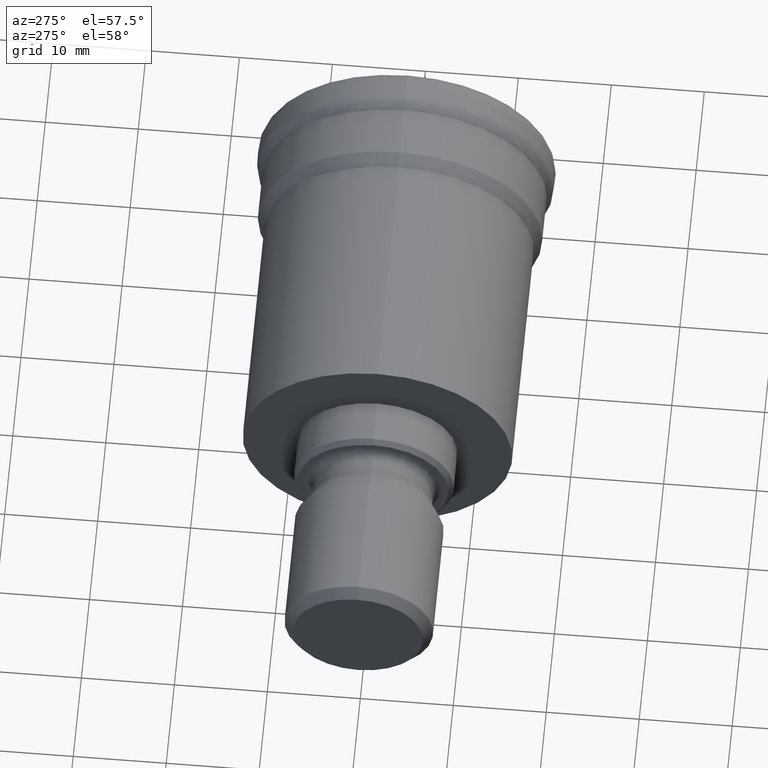
[diagram: clean part render]
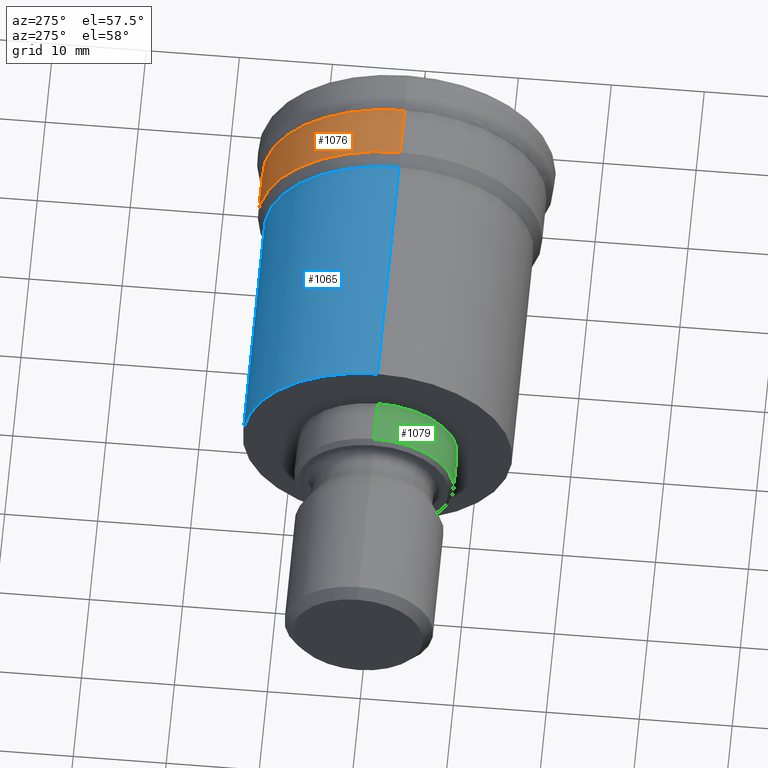
[diagram: same view with three faces highlighted in distinct colors, each labeled with its STEP entity id]
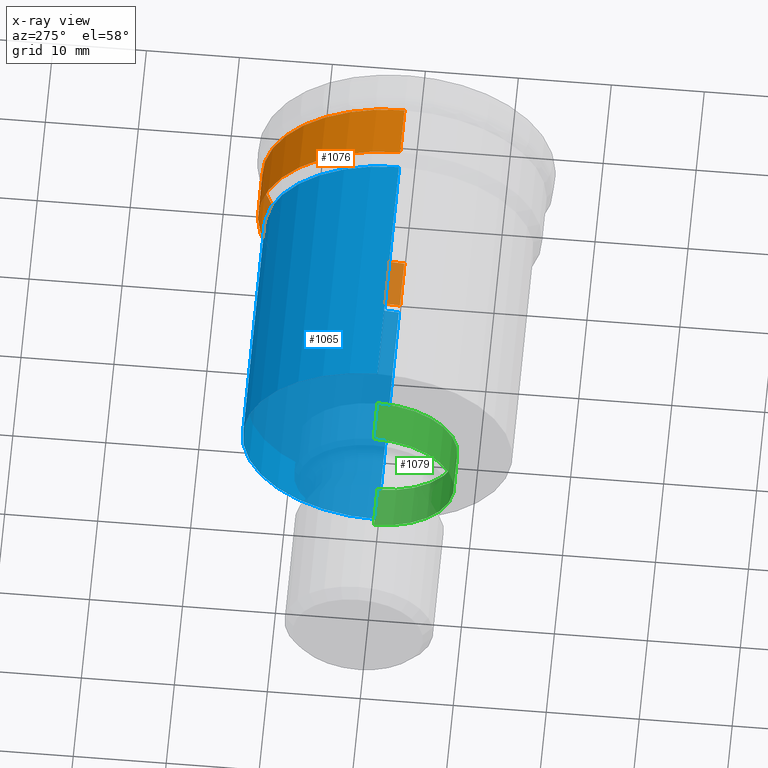
[diagram: x-ray of the same camera — body ghosted, the three highlighted faces saturated]
A machine part, auxiliary view with three faces highlighted in distinct colors.
The next image is the same camera in x-ray (body ghosted, the three faces saturated) — at least one of them is partly hidden behind the body in this view.
Their STEP definitions:

[orange] entity #1076 — the highlighted cylindrical surface (partial cylindrical patch) has radius 15.3 mm, axis along (1, -0, -0).
#69 = DIRECTION ( 'NONE',  ( 1.000000000000000000, -0.0000000000000000000, -0.0000000000000000000 ) ) ;
#75 = CARTESIAN_POINT ( 'NONE',  ( 0.0000000000000000000, 0.0000000000000000000, 0.0000000000000000000 ) ) ;
#78 = DIRECTION ( 'NONE',  ( 0.0000000000000000000, 0.0000000000000000000, -1.000000000000000000 ) ) ;
#159 = CIRCLE ( 'NONE', #523, 15.29999999999999700 ) ;
#217 = ORIENTED_EDGE ( 'NONE', *, *, #506, .T. ) ;
#224 = ORIENTED_EDGE ( 'NONE', *, *, #406, .F. ) ;
#231 = ORIENTED_EDGE ( 'NONE', *, *, #545, .F. ) ;
#258 = ORIENTED_EDGE ( 'NONE', *, *, #496, .T. ) ;
#323 = CIRCLE ( 'NONE', #454, 15.29999999999999700 ) ;
#338 = LINE ( 'NONE', #939, #347 ) ;
#347 = VECTOR ( 'NONE', #938, 1000.000000000000000 ) ;
#372 = LINE ( 'NONE', #887, #379 ) ;
#379 = VECTOR ( 'NONE', #690, 1000.000000000000000 ) ;
#406 = EDGE_CURVE ( 'NONE', #860, #864, #372, .T. ) ;
#454 = AXIS2_PLACEMENT_3D ( 'NONE', #973, #928, #995 ) ;
#496 = EDGE_CURVE ( 'NONE', #860, #846, #323, .T. ) ;
#506 = EDGE_CURVE ( 'NONE', #846, #863, #338, .T. ) ;
#523 = AXIS2_PLACEMENT_3D ( 'NONE', #809, #910, #1002 ) ;
#545 = EDGE_CURVE ( 'NONE', #864, #863, #159, .T. ) ;
#549 = AXIS2_PLACEMENT_3D ( 'NONE', #75, #69, #78 ) ;
#601 = EDGE_LOOP ( 'NONE', ( #258, #217, #231, #224 ) ) ;
#690 = DIRECTION ( 'NONE',  ( 1.000000000000000000, -0.0000000000000000000, -0.0000000000000000000 ) ) ;
#748 = CARTESIAN_POINT ( 'NONE',  ( -11.10000000000000000, 0.0000000000000000000, -15.29999999999999700 ) ) ;
#792 = CARTESIAN_POINT ( 'NONE',  ( -5.747249536980591600, 0.0000000000000000000, -15.29999999999999700 ) ) ;
#809 = CARTESIAN_POINT ( 'NONE',  ( -5.747249536980591600, 0.0000000000000000000, 0.0000000000000000000 ) ) ;
#834 = CARTESIAN_POINT ( 'NONE',  ( -5.747249536980591600, 1.873709602695450100E-015, 15.29999999999999700 ) ) ;
#846 = VERTEX_POINT ( 'NONE', #899 ) ;
#860 = VERTEX_POINT ( 'NONE', #748 ) ;
#863 = VERTEX_POINT ( 'NONE', #834 ) ;
#864 = VERTEX_POINT ( 'NONE', #792 ) ;
#887 = CARTESIAN_POINT ( 'NONE',  ( 0.0000000000000000000, 0.0000000000000000000, -15.29999999999999700 ) ) ;
#899 = CARTESIAN_POINT ( 'NONE',  ( -11.10000000000000000, 1.873709602695450100E-015, 15.29999999999999700 ) ) ;
#910 = DIRECTION ( 'NONE',  ( 1.000000000000000000, -0.0000000000000000000, -0.0000000000000000000 ) ) ;
#928 = DIRECTION ( 'NONE',  ( 1.000000000000000000, -0.0000000000000000000, -0.0000000000000000000 ) ) ;
#938 = DIRECTION ( 'NONE',  ( 1.000000000000000000, -0.0000000000000000000, -0.0000000000000000000 ) ) ;
#939 = CARTESIAN_POINT ( 'NONE',  ( 0.0000000000000000000, 1.873709602695450100E-015, 15.29999999999999700 ) ) ;
#973 = CARTESIAN_POINT ( 'NONE',  ( -11.10000000000000000, 0.0000000000000000000, 0.0000000000000000000 ) ) ;
#995 = DIRECTION ( 'NONE',  ( 0.0000000000000000000, 0.0000000000000000000, -1.000000000000000000 ) ) ;
#1002 = DIRECTION ( 'NONE',  ( 0.0000000000000000000, 0.0000000000000000000, -1.000000000000000000 ) ) ;
#1024 = FACE_OUTER_BOUND ( 'NONE', #601, .T. ) ;
#1035 = CYLINDRICAL_SURFACE ( 'NONE', #549, 15.29999999999999700 ) ;
#1076 = ADVANCED_FACE ( 'NONE', ( #1024 ), #1035, .T. ) ;

[blue] entity #1065 — the highlighted cylindrical surface (partial cylindrical patch) has radius 14.5 mm, axis along (1, -0, -0).
#27 = DIRECTION ( 'NONE',  ( 0.0000000000000000000, 0.0000000000000000000, -1.000000000000000000 ) ) ;
#132 = CARTESIAN_POINT ( 'NONE',  ( 0.0000000000000000000, 0.0000000000000000000, 0.0000000000000000000 ) ) ;
#138 = DIRECTION ( 'NONE',  ( 1.000000000000000000, -0.0000000000000000000, -0.0000000000000000000 ) ) ;
#156 = LINE ( 'NONE', #911, #196 ) ;
#186 = CIRCLE ( 'NONE', #445, 14.49999999999999800 ) ;
#196 = VECTOR ( 'NONE', #893, 1000.000000000000000 ) ;
#214 = ORIENTED_EDGE ( 'NONE', *, *, #467, .T. ) ;
#240 = ORIENTED_EDGE ( 'NONE', *, *, #418, .T. ) ;
#292 = ORIENTED_EDGE ( 'NONE', *, *, #576, .F. ) ;
#306 = CIRCLE ( 'NONE', #432, 14.49999999999999500 ) ;
#358 = VECTOR ( 'NONE', #672, 1000.000000000000000 ) ;
#374 = LINE ( 'NONE', #990, #358 ) ;
#418 = EDGE_CURVE ( 'NONE', #870, #679, #374, .T. ) ;
#432 = AXIS2_PLACEMENT_3D ( 'NONE', #962, #724, #725 ) ;
#445 = AXIS2_PLACEMENT_3D ( 'NONE', #920, #981, #1014 ) ;
#467 = EDGE_CURVE ( 'NONE', #875, #870, #306, .T. ) ;
#576 = EDGE_CURVE ( 'NONE', #875, #868, #156, .T. ) ;
#585 = AXIS2_PLACEMENT_3D ( 'NONE', #132, #138, #27 ) ;
#587 = EDGE_CURVE ( 'NONE', #868, #679, #186, .T. ) ;
#604 = EDGE_LOOP ( 'NONE', ( #214, #240, #637, #292 ) ) ;
#637 = ORIENTED_EDGE ( 'NONE', *, *, #587, .F. ) ;
#672 = DIRECTION ( 'NONE',  ( 1.000000000000000000, -0.0000000000000000000, -0.0000000000000000000 ) ) ;
#679 = VERTEX_POINT ( 'NONE', #958 ) ;
#724 = DIRECTION ( 'NONE',  ( 1.000000000000000000, -0.0000000000000000000, -0.0000000000000000000 ) ) ;
#725 = DIRECTION ( 'NONE',  ( 0.0000000000000000000, 0.0000000000000000000, -1.000000000000000000 ) ) ;
#798 = CARTESIAN_POINT ( 'NONE',  ( -12.48564064605510300, 0.0000000000000000000, -14.49999999999999800 ) ) ;
#802 = CARTESIAN_POINT ( 'NONE',  ( -38.85999999999999900, 1.775737858763661600E-015, 14.49999999999999500 ) ) ;
#813 = CARTESIAN_POINT ( 'NONE',  ( -38.85999999999999900, 0.0000000000000000000, -14.49999999999999500 ) ) ;
#868 = VERTEX_POINT ( 'NONE', #798 ) ;
#870 = VERTEX_POINT ( 'NONE', #802 ) ;
#875 = VERTEX_POINT ( 'NONE', #813 ) ;
#893 = DIRECTION ( 'NONE',  ( 1.000000000000000000, -0.0000000000000000000, -0.0000000000000000000 ) ) ;
#911 = CARTESIAN_POINT ( 'NONE',  ( 0.0000000000000000000, 0.0000000000000000000, -14.49999999999999600 ) ) ;
#920 = CARTESIAN_POINT ( 'NONE',  ( -12.48564064605510300, 0.0000000000000000000, 0.0000000000000000000 ) ) ;
#958 = CARTESIAN_POINT ( 'NONE',  ( -12.48564064605510300, 1.775737858763662000E-015, 14.50000000000000000 ) ) ;
#962 = CARTESIAN_POINT ( 'NONE',  ( -38.85999999999999900, 0.0000000000000000000, 0.0000000000000000000 ) ) ;
#981 = DIRECTION ( 'NONE',  ( 1.000000000000000000, -0.0000000000000000000, -0.0000000000000000000 ) ) ;
#990 = CARTESIAN_POINT ( 'NONE',  ( 0.0000000000000000000, 1.775737858763661600E-015, 14.49999999999999600 ) ) ;
#1014 = DIRECTION ( 'NONE',  ( 0.0000000000000000000, 0.0000000000000000000, -1.000000000000000000 ) ) ;
#1065 = ADVANCED_FACE ( 'NONE', ( #1133 ), #1087, .T. ) ;
#1087 = CYLINDRICAL_SURFACE ( 'NONE', #585, 14.49999999999999600 ) ;
#1133 = FACE_OUTER_BOUND ( 'NONE', #604, .T. ) ;

[green] entity #1079 — the highlighted cylindrical surface (partial cylindrical patch) has radius 8.6 mm, axis along (1, -0, -0).
#5 = AXIS2_PLACEMENT_3D ( 'NONE', #116, #117, #118 ) ;
#116 = CARTESIAN_POINT ( 'NONE',  ( 0.0000000000000000000, 0.0000000000000000000, 0.0000000000000000000 ) ) ;
#117 = DIRECTION ( 'NONE',  ( 1.000000000000000000, -0.0000000000000000000, -0.0000000000000000000 ) ) ;
#118 = DIRECTION ( 'NONE',  ( 0.0000000000000000000, 0.0000000000000000000, -1.000000000000000000 ) ) ;
#164 = VECTOR ( 'NONE', #906, 1000.000000000000000 ) ;
#168 = LINE ( 'NONE', #925, #164 ) ;
#212 = ORIENTED_EDGE ( 'NONE', *, *, #509, .T. ) ;
#216 = ORIENTED_EDGE ( 'NONE', *, *, #402, .F. ) ;
#284 = ORIENTED_EDGE ( 'NONE', *, *, #554, .T. ) ;
#324 = LINE ( 'NONE', #772, #346 ) ;
#345 = CIRCLE ( 'NONE', #577, 8.599999999999996100 ) ;
#346 = VECTOR ( 'NONE', #782, 1000.000000000000000 ) ;
#375 = CIRCLE ( 'NONE', #451, 8.599999999999996100 ) ;
#402 = EDGE_CURVE ( 'NONE', #856, #884, #375, .T. ) ;
#451 = AXIS2_PLACEMENT_3D ( 'NONE', #682, #700, #699 ) ;
#509 = EDGE_CURVE ( 'NONE', #882, #862, #345, .T. ) ;
#515 = EDGE_CURVE ( 'NONE', #882, #856, #324, .T. ) ;
#554 = EDGE_CURVE ( 'NONE', #862, #884, #168, .T. ) ;
#577 = AXIS2_PLACEMENT_3D ( 'NONE', #1012, #947, #776 ) ;
#598 = EDGE_LOOP ( 'NONE', ( #653, #212, #284, #216 ) ) ;
#653 = ORIENTED_EDGE ( 'NONE', *, *, #515, .F. ) ;
#682 = CARTESIAN_POINT ( 'NONE',  ( -38.85999999999999900, 0.0000000000000000000, 0.0000000000000000000 ) ) ;
#699 = DIRECTION ( 'NONE',  ( 0.0000000000000000000, 0.0000000000000000000, -1.000000000000000000 ) ) ;
#700 = DIRECTION ( 'NONE',  ( 1.000000000000000000, -0.0000000000000000000, -0.0000000000000000000 ) ) ;
#750 = CARTESIAN_POINT ( 'NONE',  ( -38.85999999999999900, 1.053196247266723300E-015, 8.599999999999996100 ) ) ;
#772 = CARTESIAN_POINT ( 'NONE',  ( 0.0000000000000000000, 1.053196247266723300E-015, 8.599999999999996100 ) ) ;
#776 = DIRECTION ( 'NONE',  ( 0.0000000000000000000, 0.0000000000000000000, -1.000000000000000000 ) ) ;
#782 = DIRECTION ( 'NONE',  ( 1.000000000000000000, -0.0000000000000000000, -0.0000000000000000000 ) ) ;
#820 = CARTESIAN_POINT ( 'NONE',  ( -43.35999999999999200, 1.053196247266723300E-015, 8.599999999999996100 ) ) ;
#822 = CARTESIAN_POINT ( 'NONE',  ( -38.85999999999999900, 0.0000000000000000000, -8.599999999999996100 ) ) ;
#832 = CARTESIAN_POINT ( 'NONE',  ( -43.35999999999999200, 0.0000000000000000000, -8.599999999999996100 ) ) ;
#856 = VERTEX_POINT ( 'NONE', #750 ) ;
#862 = VERTEX_POINT ( 'NONE', #832 ) ;
#882 = VERTEX_POINT ( 'NONE', #820 ) ;
#884 = VERTEX_POINT ( 'NONE', #822 ) ;
#906 = DIRECTION ( 'NONE',  ( 1.000000000000000000, -0.0000000000000000000, -0.0000000000000000000 ) ) ;
#925 = CARTESIAN_POINT ( 'NONE',  ( 0.0000000000000000000, 0.0000000000000000000, -8.599999999999996100 ) ) ;
#947 = DIRECTION ( 'NONE',  ( 1.000000000000000000, -0.0000000000000000000, -0.0000000000000000000 ) ) ;
#1012 = CARTESIAN_POINT ( 'NONE',  ( -43.35999999999999200, 0.0000000000000000000, 0.0000000000000000000 ) ) ;
#1029 = FACE_OUTER_BOUND ( 'NONE', #598, .T. ) ;
#1033 = CYLINDRICAL_SURFACE ( 'NONE', #5, 8.599999999999996100 ) ;
#1079 = ADVANCED_FACE ( 'NONE', ( #1029 ), #1033, .T. ) ;